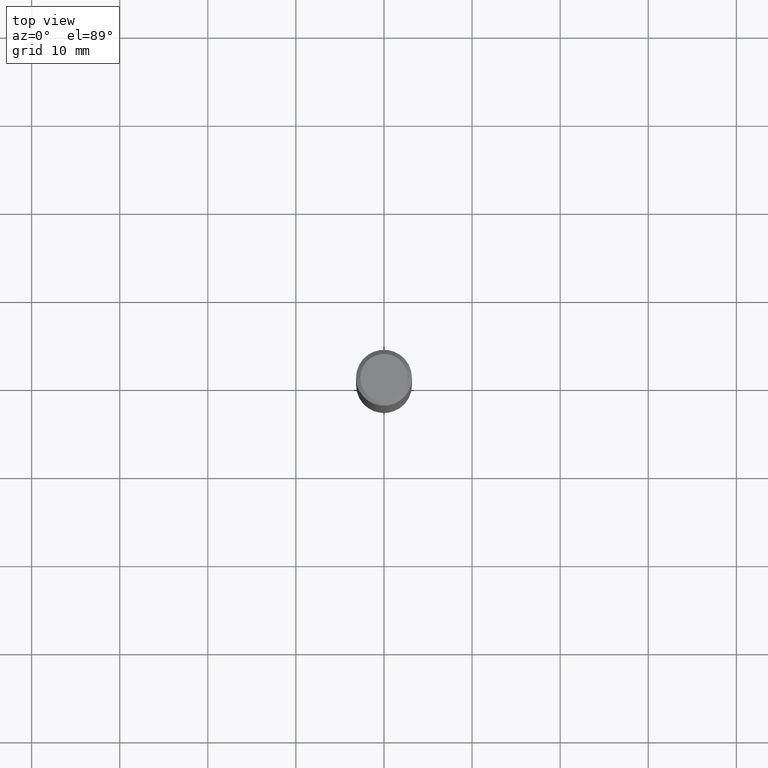
[diagram: clean part render]
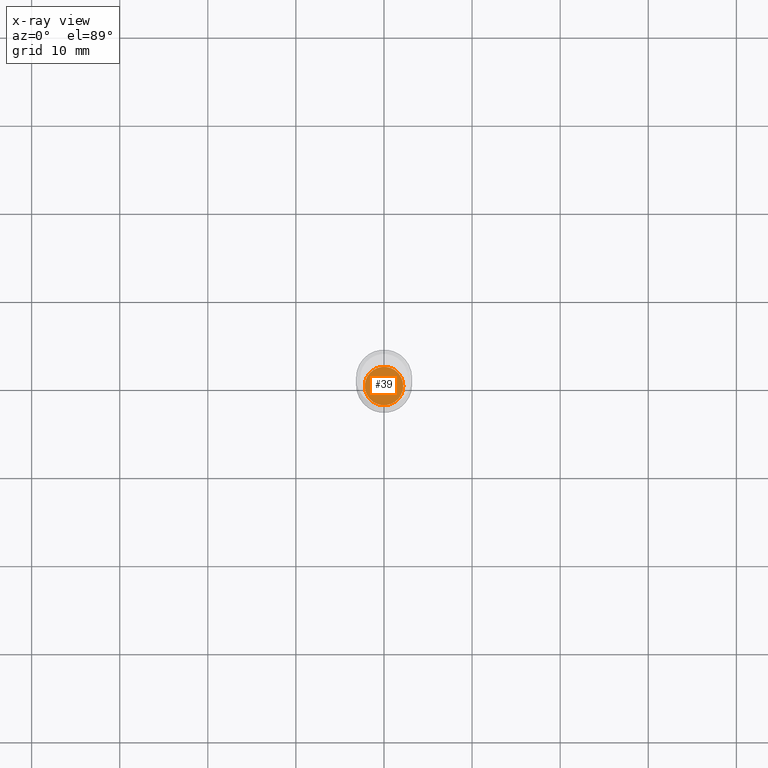
[diagram: x-ray — body ghosted, one internal face saturated and labeled with its STEP entity id]
A machine part, top view, then the same camera in x-ray: the body is ghosted and one INTERNAL B-rep face — a face not visible from any outside direction — is saturated and labeled: STEP entity #39.
In plain terms, the highlighted planar face has unit normal (-0, 0, 1).
Its self-contained STEP definition (entity closure, byte-faithful):
#8 = VERTEX_POINT ( 'NONE', #333 ) ;
#33 = DIRECTION ( 'NONE',  ( 1.000000000000000000, -6.982962677686265922E-15, 4.876176775795935793E-29 ) ) ;
#39 = ADVANCED_FACE ( 'NONE', ( #250 ), #179, .F. ) ;
#48 = CIRCLE ( 'NONE', #379, 0.08599999999999997924 ) ;
#70 = VERTEX_POINT ( 'NONE', #323 ) ;
#84 = ORIENTED_EDGE ( 'NONE', *, *, #339, .F. ) ;
#115 = CIRCLE ( 'NONE', #417, 0.08599999999999997924 ) ;
#120 = EDGE_CURVE ( 'NONE', #70, #8, #48, .T. ) ;
#123 = EDGE_LOOP ( 'NONE', ( #84, #484 ) ) ;
#179 = PLANE ( 'NONE',  #423 ) ;
#245 = DIRECTION ( 'NONE',  ( 1.000000000000000000, -6.982962677686266711E-15, 0.000000000000000000 ) ) ;
#250 = FACE_OUTER_BOUND ( 'NONE', #123, .T. ) ;
#273 = DIRECTION ( 'NONE',  ( -2.445468806185136597E-29, 3.491481338843145583E-15, 1.000000000000000000 ) ) ;
#282 = DIRECTION ( 'NONE',  ( 1.000000000000000000, -6.982962677686266711E-15, 0.000000000000000000 ) ) ;
#323 = CARTESIAN_POINT ( 'NONE',  ( -0.08599999999999997924, -6.973272969378358740E-15, -2.173000000000000043 ) ) ;
#333 = CARTESIAN_POINT ( 'NONE',  ( 0.08599999999999997924, -8.187523739587173593E-15, -2.173000000000000043 ) ) ;
#339 = EDGE_CURVE ( 'NONE', #8, #70, #115, .T. ) ;
#368 = DIRECTION ( 'NONE',  ( -2.438088387897960049E-29, 3.491481338843145188E-15, 1.000000000000000000 ) ) ;
#379 = AXIS2_PLACEMENT_3D ( 'NONE', #400, #476, #245 ) ;
#400 = CARTESIAN_POINT ( 'NONE',  ( 5.314003715840301789E-29, -7.586988949306155855E-15, -2.173000000000000043 ) ) ;
#402 = CARTESIAN_POINT ( 'NONE',  ( 5.314003715840301789E-29, -7.586988949306155855E-15, -2.173000000000000043 ) ) ;
#417 = AXIS2_PLACEMENT_3D ( 'NONE', #433, #273, #282 ) ;
#423 = AXIS2_PLACEMENT_3D ( 'NONE', #402, #368, #33 ) ;
#433 = CARTESIAN_POINT ( 'NONE',  ( 5.314003715840301789E-29, -7.586988949306155855E-15, -2.173000000000000043 ) ) ;
#476 = DIRECTION ( 'NONE',  ( -2.445468806185136597E-29, 3.491481338843145583E-15, 1.000000000000000000 ) ) ;
#484 = ORIENTED_EDGE ( 'NONE', *, *, #120, .F. ) ;